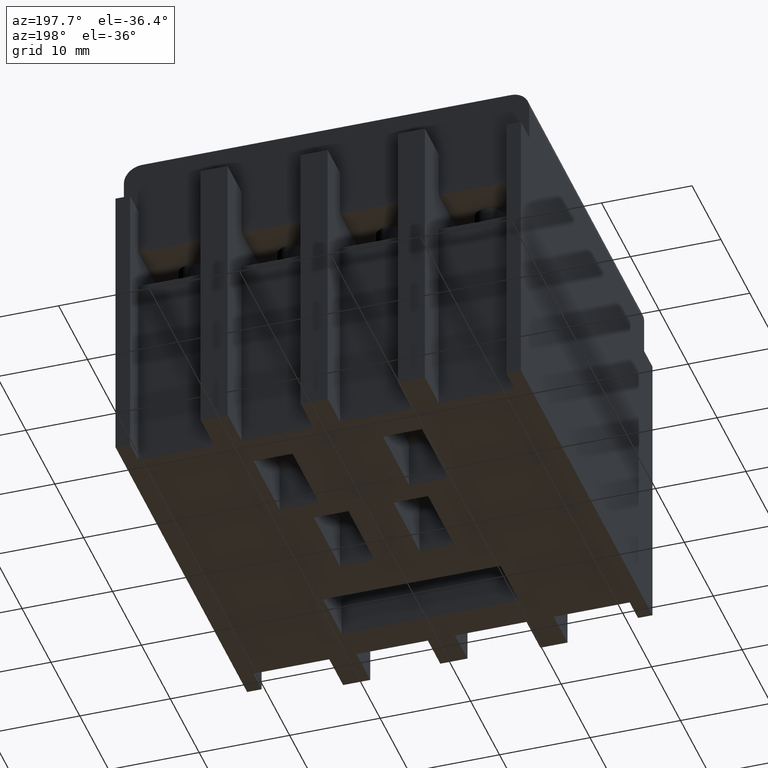
[diagram: clean part render]
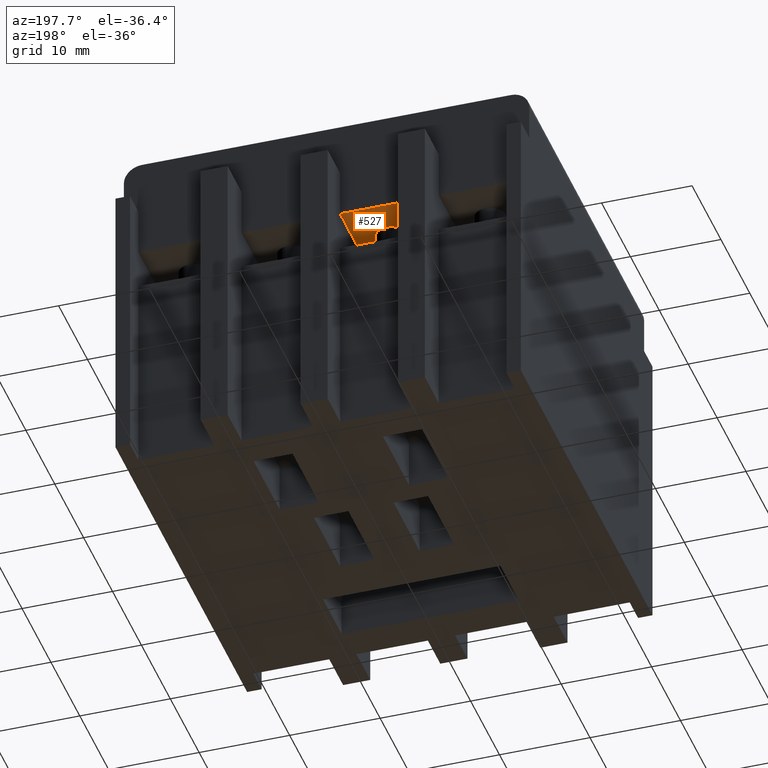
[diagram: same view with one face highlighted and labeled with its STEP entity id]
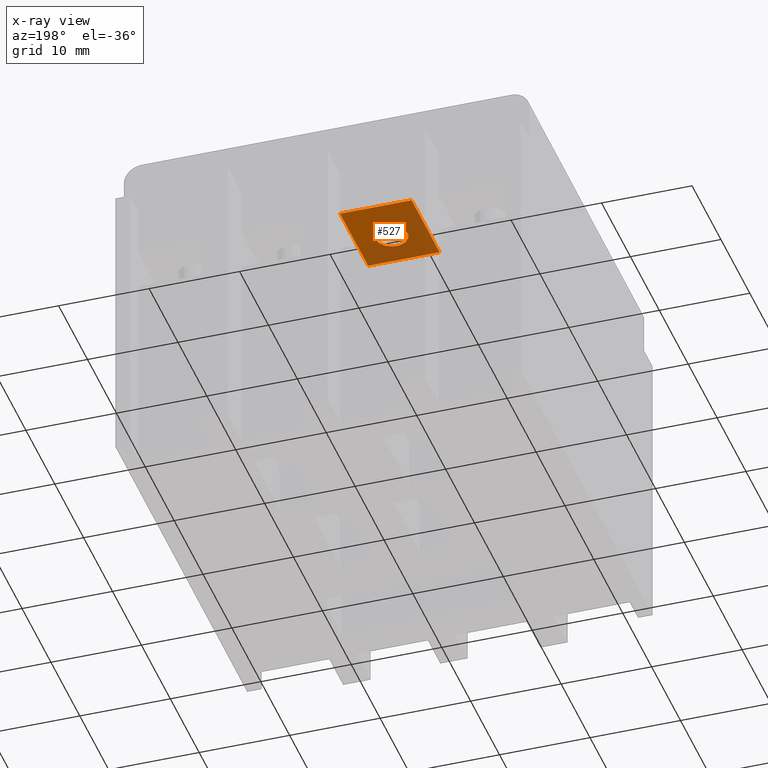
[diagram: x-ray of the same camera — body ghosted, the highlighted face saturated]
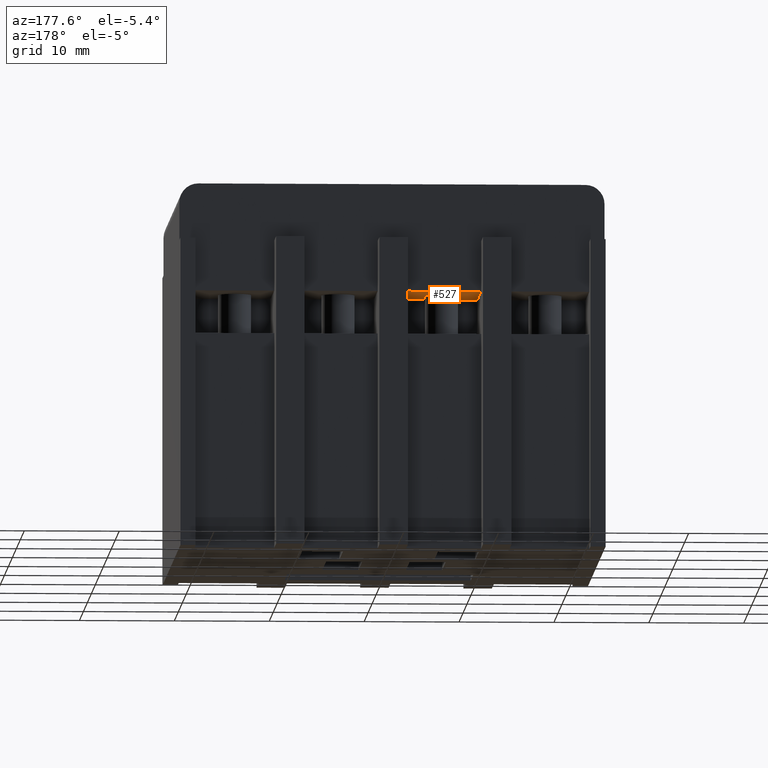
[diagram: same view with one face highlighted and labeled with its STEP entity id]
A machine part, auxiliary view. The second image highlights one B-rep face of the part: STEP entity #527.
The next image is the same camera in x-ray: the body ghosted, the highlighted face saturated — about 52% of this face is hidden behind the body in this view.
A second angle (auxiliary view) of the same face is appended — the face is thin or edge-on in the first view.
In plain terms, the highlighted planar face has unit normal (0, -0, -1).
Its self-contained STEP definition (entity closure, byte-faithful):
#370=CIRCLE('',#4699,1.75);
#527=ADVANCED_FACE('',(#933,#934),#752,.T.);
#752=PLANE('',#4700);
#933=FACE_BOUND('',#1125,.T.);
#934=FACE_BOUND('',#1126,.T.);
#1125=EDGE_LOOP('',(#1883,#1884,#1885,#1886));
#1126=EDGE_LOOP('',(#1887));
#1883=ORIENTED_EDGE('',*,*,#3251,.T.);
#1884=ORIENTED_EDGE('',*,*,#3252,.F.);
#1885=ORIENTED_EDGE('',*,*,#3253,.F.);
#1886=ORIENTED_EDGE('',*,*,#3254,.T.);
#1887=ORIENTED_EDGE('',*,*,#3255,.F.);
#2745=VERTEX_POINT('',#6766);
#2746=VERTEX_POINT('',#6767);
#2747=VERTEX_POINT('',#6769);
#2748=VERTEX_POINT('',#6771);
#2749=VERTEX_POINT('',#6774);
#3251=EDGE_CURVE('',#2745,#2746,#3801,.T.);
#3252=EDGE_CURVE('',#2747,#2746,#3802,.T.);
#3253=EDGE_CURVE('',#2748,#2747,#3803,.T.);
#3254=EDGE_CURVE('',#2748,#2745,#3804,.T.);
#3255=EDGE_CURVE('',#2749,#2749,#370,.T.);
#3801=LINE('',#6765,#4303);
#3802=LINE('',#6768,#4304);
#3803=LINE('',#6770,#4305);
#3804=LINE('',#6772,#4306);
#4303=VECTOR('',#5491,1.);
#4304=VECTOR('',#5492,1.);
#4305=VECTOR('',#5493,1.);
#4306=VECTOR('',#5494,1.);
#4699=AXIS2_PLACEMENT_3D('',#6773,#5495,#5496);
#4700=AXIS2_PLACEMENT_3D('',#6775,#5497,#5498);
#5491=DIRECTION('',(1.,0.,0.));
#5492=DIRECTION('',(0.,1.,-5.52326749582304E-014));
#5493=DIRECTION('',(1.,0.,0.));
#5494=DIRECTION('',(0.,1.,-5.52326749582304E-014));
#5495=DIRECTION('',(0.,-5.52326749582304E-014,-1.));
#5496=DIRECTION('',(1.,0.,0.));
#5497=DIRECTION('',(0.,-5.52326749582304E-014,-1.));
#5498=DIRECTION('',(-1.,0.,0.));
#6765=CARTESIAN_POINT('',(-9.4,19.9000000000056,102.699999999999));
#6766=CARTESIAN_POINT('',(-9.4,19.9000000000056,102.699999999999));
#6767=CARTESIAN_POINT('',(-1.5,19.9000000000056,102.699999999999));
#6768=CARTESIAN_POINT('',(-1.5,10.2000000000056,102.699999999999));
#6769=CARTESIAN_POINT('',(-1.5,10.2000000000056,102.699999999999));
#6770=CARTESIAN_POINT('',(-9.4,10.2000000000056,102.699999999999));
#6771=CARTESIAN_POINT('',(-9.4,10.2000000000056,102.699999999999));
#6772=CARTESIAN_POINT('',(-9.4,10.2000000000056,102.699999999999));
#6773=CARTESIAN_POINT('',(-5.45000000000001,14.4000000000056,102.699999999999));
#6774=CARTESIAN_POINT('',(-3.70000000000001,14.4000000000056,102.699999999999));
#6775=CARTESIAN_POINT('',(-9.4,10.2000000000056,102.699999999999));